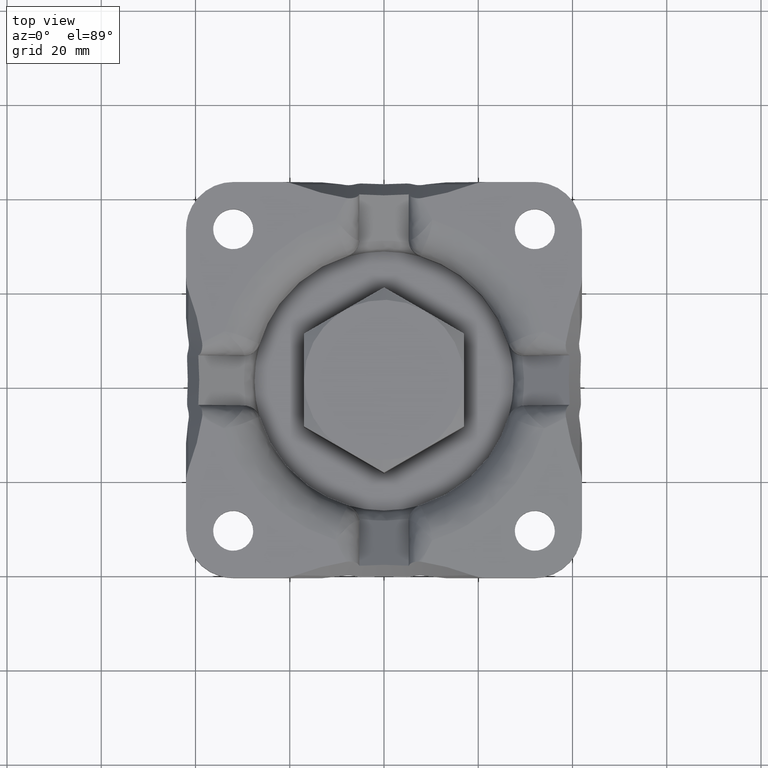
[diagram: clean part render]
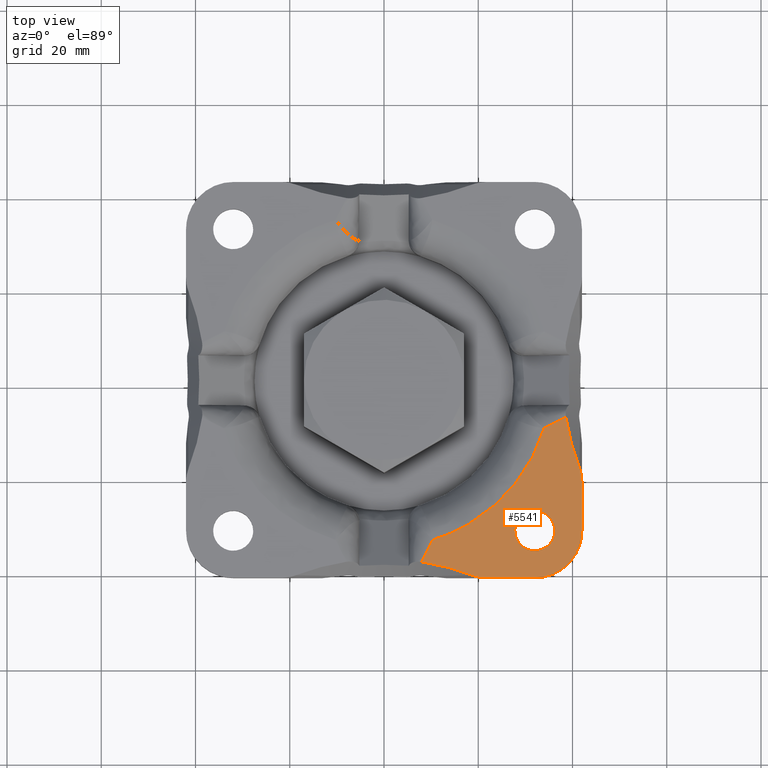
[diagram: same view with one face highlighted and labeled with its STEP entity id]
A machine part, top view. The second image highlights one B-rep face of the part: STEP entity #5541.
In plain terms, the highlighted face is a freeform B-spline surface patch.
Its self-contained STEP definition (entity closure, byte-faithful):
#4426=CARTESIAN_POINT('',(36.290840881294038,-9.100321667017690,18.0));
#4427=VERTEX_POINT('',#4426);
#4428=CARTESIAN_POINT('',(33.988049370330152,-10.250000000000000,18.0));
#4429=VERTEX_POINT('',#4428);
#4430=CARTESIAN_POINT('',(36.290840881294031,-9.100321667017690,18.0));
#4431=CARTESIAN_POINT('',(35.523243710972743,-9.483547778011799,18.0));
#4432=CARTESIAN_POINT('',(34.755646540651441,-9.866773889005902,18.0));
#4433=CARTESIAN_POINT('',(33.988049370330152,-10.250000000000000,18.0));
#4434=B_SPLINE_CURVE_WITH_KNOTS('',3,(#4430,#4431,#4432,#4433),.UNSPECIFIED.,.F.,.U.,(4,4),(0.198846075553598,0.258220082307588),.UNSPECIFIED.);
#4435=EDGE_CURVE('',#4427,#4429,#4434,.T.);
#4437=CARTESIAN_POINT('',(38.593632392255302,-7.950643334036680,18.0));
#4438=VERTEX_POINT('',#4437);
#4439=CARTESIAN_POINT('',(38.593632392255302,-7.950643334036680,18.0));
#4440=CARTESIAN_POINT('',(37.826035221936628,-8.333869445029471,18.0));
#4441=CARTESIAN_POINT('',(37.058438051615333,-8.717095556023583,18.0));
#4442=CARTESIAN_POINT('',(36.290840881294031,-9.100321667017690,18.0));
#4443=B_SPLINE_CURVE_WITH_KNOTS('',3,(#4439,#4440,#4441,#4442),.UNSPECIFIED.,.F.,.U.,(4,4),(0.139472068799608,0.198846075553598),.UNSPECIFIED.);
#4444=EDGE_CURVE('',#4438,#4427,#4443,.T.);
#4839=CARTESIAN_POINT('',(7.950643334036790,-38.593632392255053,18.0));
#4840=VERTEX_POINT('',#4839);
#4870=CARTESIAN_POINT('',(9.100321667018392,-36.290840881292603,18.0));
#4871=VERTEX_POINT('',#4870);
#4872=CARTESIAN_POINT('',(9.100321667018392,-36.290840881292603,18.0));
#4873=CARTESIAN_POINT('',(8.717095556024523,-37.058438051613422,18.0));
#4874=CARTESIAN_POINT('',(8.333869445030652,-37.826035221934227,18.0));
#4875=CARTESIAN_POINT('',(7.950643334036781,-38.593632392255053,18.0));
#4876=B_SPLINE_CURVE_WITH_KNOTS('',3,(#4872,#4873,#4874,#4875),.UNSPECIFIED.,.F.,.U.,(4,4),(0.198846075553636,0.258220082307589),.UNSPECIFIED.);
#4877=EDGE_CURVE('',#4871,#4840,#4876,.T.);
#4879=CARTESIAN_POINT('',(10.250000000000000,-33.988049370330152,18.0));
#4880=VERTEX_POINT('',#4879);
#4881=CARTESIAN_POINT('',(10.250000000000000,-33.988049370330152,18.0));
#4882=CARTESIAN_POINT('',(9.866773889006131,-34.755646540650972,18.0));
#4883=CARTESIAN_POINT('',(9.483547778012261,-35.523243710971791,18.0));
#4884=CARTESIAN_POINT('',(9.100321667018392,-36.290840881292603,18.0));
#4885=B_SPLINE_CURVE_WITH_KNOTS('',3,(#4881,#4882,#4883,#4884),.UNSPECIFIED.,.F.,.U.,(4,4),(0.139472068799684,0.198846075553636),.UNSPECIFIED.);
#4886=EDGE_CURVE('',#4880,#4871,#4885,.T.);
#5364=CARTESIAN_POINT('',(6.249878034566190,-6.249878034566072,18.0));
#5365=CARTESIAN_POINT('',(43.700766212745528,-6.249878034566072,18.0));
#5366=CARTESIAN_POINT('',(6.249878034566191,-43.700766212745542,18.0));
#5367=CARTESIAN_POINT('',(43.700766212745528,-43.700766212745542,18.0));
#5368=B_SPLINE_SURFACE_WITH_KNOTS('',1,1,((#5364,#5366),(#5365,#5367)),.UNSPECIFIED.,.F.,.F.,.U.,(2,2),(2,2),(0.0,37.450888178179341),(0.0,37.450888178179461),.UNSPECIFIED.);
#5369=CARTESIAN_POINT('',(42.0,-32.0,18.0));
#5370=VERTEX_POINT('',#5369);
#5371=CARTESIAN_POINT('',(42.0,-21.758669086775949,18.0));
#5372=VERTEX_POINT('',#5371);
#5373=CARTESIAN_POINT('',(42.0,-32.0,18.0));
#5374=CARTESIAN_POINT('',(42.0,-21.758669086775949,18.0));
#5375=QUASI_UNIFORM_CURVE('',1,(#5373,#5374),.UNSPECIFIED.,.F.,.U.);
#5376=EDGE_CURVE('',#5370,#5372,#5375,.T.);
#5377=ORIENTED_EDGE('',*,*,#5376,.T.);
#5378=CARTESIAN_POINT('',(41.448999235994712,-18.671574246999249,18.0));
#5379=VERTEX_POINT('',#5378);
#5380=CARTESIAN_POINT('',(42.0,-21.758669086775949,18.0));
#5381=CARTESIAN_POINT('',(42.0,-21.493215726305671,18.0));
#5382=CARTESIAN_POINT('',(41.988306236514347,-21.229849529641200,18.0));
#5383=CARTESIAN_POINT('',(41.942768430165700,-20.707070633529959,17.999999999999989));
#5384=CARTESIAN_POINT('',(41.908922876091907,-20.447658203811969,18.0));
#5385=CARTESIAN_POINT('',(41.818761333614198,-19.932843984516960,18.000000000000011));
#5386=CARTESIAN_POINT('',(41.762464454972282,-19.677438784130111,18.0));
#5387=CARTESIAN_POINT('',(41.625317733616342,-19.171010724251150,18.0));
#5388=CARTESIAN_POINT('',(41.544529077299842,-18.919976943892170,18.0));
#5389=CARTESIAN_POINT('',(41.448999235994712,-18.671574246999249,18.0));
#5390=B_SPLINE_CURVE_WITH_KNOTS('',3,(#5380,#5381,#5382,#5383,#5384,#5385,#5386,#5387,#5388,#5389),.UNSPECIFIED.,.F.,.U.,(4,2,2,2,4),(0.0,0.250000000000000,0.500000000000000,0.750000000000000,1.0),.UNSPECIFIED.);
#5391=EDGE_CURVE('',#5372,#5379,#5390,.T.);
#5392=ORIENTED_EDGE('',*,*,#5391,.T.);
#5393=CARTESIAN_POINT('',(41.448999235994691,-18.671574246999288,18.0));
#5394=CARTESIAN_POINT('',(39.446378910959140,-13.464235024039066,18.000000000000004));
#5395=CARTESIAN_POINT('',(38.593632392255238,-7.950643334036693,18.0));
#5403=(BOUNDED_CURVE()B_SPLINE_CURVE(2,(#5393,#5394,#5395),.UNSPECIFIED.,.F.,.U.)CURVE()GEOMETRIC_REPRESENTATION_ITEM()QUASI_UNIFORM_CURVE()RATIONAL_B_SPLINE_CURVE((1.0,0.994297333057029,1.0))REPRESENTATION_ITEM(''));
#5404=EDGE_CURVE('',#5379,#4438,#5403,.T.);
#5405=ORIENTED_EDGE('',*,*,#5404,.T.);
#5406=ORIENTED_EDGE('',*,*,#4444,.T.);
#5407=ORIENTED_EDGE('',*,*,#4435,.T.);
#5408=CARTESIAN_POINT('',(33.988049370330152,-10.249999999999980,18.0));
#5409=CARTESIAN_POINT('',(28.487919741896050,-28.487919741896025,18.000000000000004));
#5410=CARTESIAN_POINT('',(10.250000000000011,-33.988049370330152,18.0));
#5418=(BOUNDED_CURVE()B_SPLINE_CURVE(2,(#5408,#5409,#5410),.UNSPECIFIED.,.F.,.U.)CURVE()GEOMETRIC_REPRESENTATION_ITEM()QUASI_UNIFORM_CURVE()RATIONAL_B_SPLINE_CURVE((1.0,0.881155625245795,1.0))REPRESENTATION_ITEM(''));
#5419=EDGE_CURVE('',#4429,#4880,#5418,.T.);
#5420=ORIENTED_EDGE('',*,*,#5419,.T.);
#5421=ORIENTED_EDGE('',*,*,#4886,.T.);
#5422=ORIENTED_EDGE('',*,*,#4877,.T.);
#5423=CARTESIAN_POINT('',(18.671574246999452,-41.448999235994762,18.0));
#5424=VERTEX_POINT('',#5423);
#5425=CARTESIAN_POINT('',(7.950643334036790,-38.593632392255053,18.0));
#5426=CARTESIAN_POINT('',(13.464235024039219,-39.446378910959183,18.000000000000004));
#5427=CARTESIAN_POINT('',(18.671574246999452,-41.448999235994748,18.0));
#5435=(BOUNDED_CURVE()B_SPLINE_CURVE(2,(#5425,#5426,#5427),.UNSPECIFIED.,.F.,.U.)CURVE()GEOMETRIC_REPRESENTATION_ITEM()QUASI_UNIFORM_CURVE()RATIONAL_B_SPLINE_CURVE((1.0,0.994297333057029,1.0))REPRESENTATION_ITEM(''));
#5436=EDGE_CURVE('',#4840,#5424,#5435,.T.);
#5437=ORIENTED_EDGE('',*,*,#5436,.T.);
#5438=CARTESIAN_POINT('',(21.758669086776099,-42.0,18.0));
#5439=VERTEX_POINT('',#5438);
#5440=CARTESIAN_POINT('',(18.671574246999452,-41.448999235994762,18.0));
#5441=CARTESIAN_POINT('',(18.919084883435939,-41.544186011806218,18.0));
#5442=CARTESIAN_POINT('',(19.169503294769289,-41.624845263975310,18.0));
#5443=CARTESIAN_POINT('',(19.675192670478530,-41.761919945613442,17.999999999999989));
#5444=CARTESIAN_POINT('',(19.930475101896679,-41.818278084634173,18.0));
#5445=CARTESIAN_POINT('',(20.445519127892961,-41.908616031816827,18.000000000000011));
#5446=CARTESIAN_POINT('',(20.705284215132849,-41.942578390304092,18.0));
#5447=CARTESIAN_POINT('',(21.229260639525450,-41.988289214174991,18.0));
#5448=CARTESIAN_POINT('',(21.494060441907450,-42.000000000000007,18.0));
#5449=CARTESIAN_POINT('',(21.758669086776148,-42.0,18.0));
#5450=B_SPLINE_CURVE_WITH_KNOTS('',3,(#5440,#5441,#5442,#5443,#5444,#5445,#5446,#5447,#5448,#5449),.UNSPECIFIED.,.F.,.U.,(4,2,2,2,4),(0.0,0.250000000000000,0.500000000000000,0.750000000000000,1.0),.UNSPECIFIED.);
#5451=EDGE_CURVE('',#5424,#5439,#5450,.T.);
#5452=ORIENTED_EDGE('',*,*,#5451,.T.);
#5453=CARTESIAN_POINT('',(32.0,-42.0,18.0));
#5454=VERTEX_POINT('',#5453);
#5455=CARTESIAN_POINT('',(21.758669086776099,-42.0,18.0));
#5456=CARTESIAN_POINT('',(32.0,-42.0,18.0));
#5457=QUASI_UNIFORM_CURVE('',1,(#5455,#5456),.UNSPECIFIED.,.F.,.U.);
#5458=EDGE_CURVE('',#5439,#5454,#5457,.T.);
#5459=ORIENTED_EDGE('',*,*,#5458,.T.);
#5460=CARTESIAN_POINT('',(32.0,-42.0,18.0));
#5461=CARTESIAN_POINT('',(42.000000000000007,-42.000000000000007,18.000000000000007));
#5462=CARTESIAN_POINT('',(42.0,-32.0,18.0));
#5470=(BOUNDED_CURVE()B_SPLINE_CURVE(2,(#5460,#5461,#5462),.UNSPECIFIED.,.F.,.U.)CURVE()GEOMETRIC_REPRESENTATION_ITEM()QUASI_UNIFORM_CURVE()RATIONAL_B_SPLINE_CURVE((1.0,0.707106781186548,1.0))REPRESENTATION_ITEM(''));
#5471=EDGE_CURVE('',#5454,#5370,#5470,.T.);
#5472=ORIENTED_EDGE('',*,*,#5471,.T.);
#5473=EDGE_LOOP('',(#5377,#5392,#5405,#5406,#5407,#5420,#5421,#5422,#5437,#5452,#5459,#5472));
#5474=FACE_OUTER_BOUND('',#5473,.T.);
#5475=CARTESIAN_POINT('',(36.250000000000007,-32.0,18.0));
#5476=VERTEX_POINT('',#5475);
#5477=CARTESIAN_POINT('',(32.259456293178843,-27.757927106716590,18.0));
#5478=VERTEX_POINT('',#5477);
#5479=CARTESIAN_POINT('',(36.250000000000007,-32.0,18.0));
#5480=CARTESIAN_POINT('',(36.250000000000007,-28.001999215797813,18.000000000000004));
#5481=CARTESIAN_POINT('',(32.259456293178843,-27.757927106716590,18.000000000000004));
#5489=(BOUNDED_CURVE()B_SPLINE_CURVE(2,(#5479,#5480,#5481),.UNSPECIFIED.,.F.,.U.)B_SPLINE_CURVE_WITH_KNOTS((3,3),(0.500000000000000,0.739332962235635),.UNSPECIFIED.)CURVE()GEOMETRIC_REPRESENTATION_ITEM()RATIONAL_B_SPLINE_CURVE((1.0,0.719603993290585,0.976072041659629))REPRESENTATION_ITEM(''));
#5490=EDGE_CURVE('',#5476,#5478,#5489,.T.);
#5491=ORIENTED_EDGE('',*,*,#5490,.F.);
#5492=CARTESIAN_POINT('',(31.740543706821160,-36.242072893283407,18.0));
#5493=VERTEX_POINT('',#5492);
#5494=CARTESIAN_POINT('',(31.740543706821160,-36.242072893283414,18.000000000000007));
#5495=CARTESIAN_POINT('',(31.870150755902927,-36.250000000000000,18.000000000000004));
#5496=CARTESIAN_POINT('',(32.0,-36.250000000000007,18.0));
#5497=CARTESIAN_POINT('',(36.250000000000014,-36.250000000000014,18.000000000000007));
#5498=CARTESIAN_POINT('',(36.250000000000007,-32.0,18.0));
#5506=(BOUNDED_CURVE()B_SPLINE_CURVE(2,(#5494,#5495,#5496,#5497,#5498),.UNSPECIFIED.,.F.,.U.)B_SPLINE_CURVE_WITH_KNOTS((3,2,3),(0.239332962235635,0.250000000000000,0.500000000000000),.UNSPECIFIED.)CURVE()GEOMETRIC_REPRESENTATION_ITEM()RATIONAL_B_SPLINE_CURVE((0.976072041659628,0.987502787895962,1.0,0.707106781186548,1.0))REPRESENTATION_ITEM(''));
#5507=EDGE_CURVE('',#5493,#5476,#5506,.T.);
#5508=ORIENTED_EDGE('',*,*,#5507,.F.);
#5509=CARTESIAN_POINT('',(27.750000000000000,-32.0,18.0));
#5510=VERTEX_POINT('',#5509);
#5511=CARTESIAN_POINT('',(27.750000000000000,-32.0,18.0));
#5512=CARTESIAN_POINT('',(27.749999999999996,-35.998000784202191,18.0));
#5513=CARTESIAN_POINT('',(31.740543706821157,-36.242072893283428,18.0));
#5521=(BOUNDED_CURVE()B_SPLINE_CURVE(2,(#5511,#5512,#5513),.UNSPECIFIED.,.F.,.U.)B_SPLINE_CURVE_WITH_KNOTS((3,3),(0.0,0.239332962235635),.UNSPECIFIED.)CURVE()GEOMETRIC_REPRESENTATION_ITEM()RATIONAL_B_SPLINE_CURVE((1.0,0.719603993290586,0.976072041659628))REPRESENTATION_ITEM(''));
#5522=EDGE_CURVE('',#5510,#5493,#5521,.T.);
#5523=ORIENTED_EDGE('',*,*,#5522,.F.);
#5524=CARTESIAN_POINT('',(32.259456293178836,-27.757927106716583,18.0));
#5525=CARTESIAN_POINT('',(32.129849244097080,-27.749999999999996,18.0));
#5526=CARTESIAN_POINT('',(32.0,-27.750000000000000,18.0));
#5527=CARTESIAN_POINT('',(27.749999999999989,-27.749999999999989,18.000000000000007));
#5528=CARTESIAN_POINT('',(27.750000000000000,-32.0,18.0));
#5536=(BOUNDED_CURVE()B_SPLINE_CURVE(2,(#5524,#5525,#5526,#5527,#5528),.UNSPECIFIED.,.F.,.U.)B_SPLINE_CURVE_WITH_KNOTS((3,2,3),(0.739332962235635,0.750000000000000,1.0),.UNSPECIFIED.)CURVE()GEOMETRIC_REPRESENTATION_ITEM()RATIONAL_B_SPLINE_CURVE((0.976072041659629,0.987502787895962,1.0,0.707106781186548,1.0))REPRESENTATION_ITEM(''));
#5537=EDGE_CURVE('',#5478,#5510,#5536,.T.);
#5538=ORIENTED_EDGE('',*,*,#5537,.F.);
#5539=EDGE_LOOP('',(#5491,#5508,#5523,#5538));
#5540=FACE_BOUND('',#5539,.T.);
#5541=ADVANCED_FACE('',(#5474,#5540),#5368,.F.);